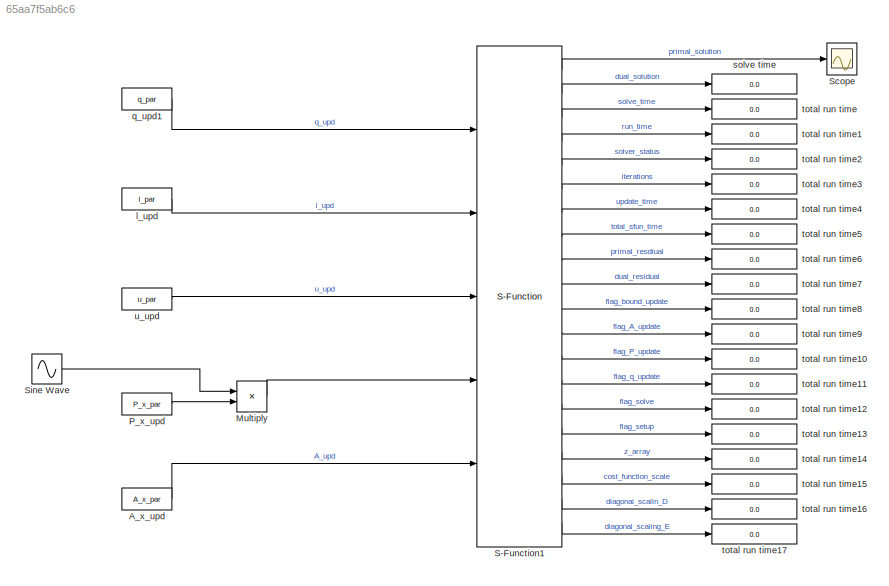
MODEL slx_65aa7f5ab6c6
KIND model
CONFIG AbsTol = auto
CONFIG EnableMultiTasking = off
CONFIG FixedStep = 0.1
CONFIG MaxStep = auto
CONFIG MinStep = auto
CONFIG RelTol = 1e-3
CONFIG SampleTimeConstraint = Unconstrained
CONFIG Solver = FixedStepAuto
CONFIG SolverName = FixedStepAuto
CONFIG StartTime = 0.0
CONFIG StopTime = 10.0
BLOCK [Constant] A_x_upd 
  Value = A_x_par
BLOCK [Product] Multiply
  InputSameDT = off
  OutDataTypeStr = Inherit: Inherit via internal rule
  Ports = [2, 1]
  RndMeth = Floor
  SaturateOnIntegerOverflow = off
BLOCK [Constant] P_x_upd 
  Value = P_x_par
BLOCK [S-Function] S-Function1
  EnableBusSupport = off
  FunctionName = osqp_sfun
  Parameters = q_par, m, n, P_x_par, P_i_par, P_p_par, A_x_par, A_i_par, A_p_par, l_par, u_par, trigger_print, trigger_Pupdate
  Ports = [5, 20]
  SFcnIsStateOwnerBlock = off
  SFunctionDeploymentMode = off
BLOCK [Scope] Scope
  Floating = off
  NumInputPorts = 1
  Ports = [1]
  ScopeSpecificationString = Simulink.scopes.TimeScopeBlockCfg('CurrentConfiguration', extmgr.ConfigurationSet(extmgr.Configuration('Core','General UI',true),extmgr.Configuration('Core','Source UI',true),extmgr.Configuration('Sources','WiredSimulink',true),extmgr.Configuration('Visuals','Time Domain',true),extmgr.Configuration('Tools','Plot Navigation',true),extmgr.Configuration('Tools','Measurements',true)),'Version','2018b'...<+1ch>
BLOCK [Sin] Sine Wave
  Amplitude = 0.1
  Bias = 2
  Ports = [0, 1]
  SampleTime = 0.1
BLOCK [Constant] l_upd
  Value = l_par
BLOCK [Constant] q_upd1
  Value = q_par
BLOCK [Display] solve time
  Decimation = 1
  Ports = [1]
BLOCK [Display] total run time
  Decimation = 1
  Ports = [1]
BLOCK [Display] total run time1
  Decimation = 1
  Ports = [1]
BLOCK [Display] total run time10
  Decimation = 1
  Ports = [1]
BLOCK [Display] total run time11
  Decimation = 1
  Ports = [1]
BLOCK [Display] total run time12
  Decimation = 1
  Ports = [1]
BLOCK [Display] total run time13
  Decimation = 1
  Ports = [1]
BLOCK [Display] total run time14
  Decimation = 1
  Ports = [1]
BLOCK [Display] total run time15
  Decimation = 1
  Ports = [1]
BLOCK [Display] total run time16
  Decimation = 1
  Ports = [1]
BLOCK [Display] total run time17
  Decimation = 1
  Ports = [1]
BLOCK [Display] total run time2
  Decimation = 1
  Ports = [1]
BLOCK [Display] total run time3
  Decimation = 1
  Ports = [1]
BLOCK [Display] total run time4
  Decimation = 1
  Ports = [1]
BLOCK [Display] total run time5
  Decimation = 1
  Ports = [1]
BLOCK [Display] total run time6
  Decimation = 1
  Ports = [1]
BLOCK [Display] total run time7
  Decimation = 1
  Ports = [1]
BLOCK [Display] total run time8
  Decimation = 1
  Ports = [1]
BLOCK [Display] total run time9
  Decimation = 1
  Ports = [1]
BLOCK [Constant] u_upd
  Value = u_par
LINE A_x_upd :1 -> S-Function1:5
LINE Multiply:1 -> S-Function1:4
LINE P_x_upd :1 -> Multiply:2
LINE S-Function1:1 -> Scope:1
LINE S-Function1:10 -> total run time7:1
LINE S-Function1:11 -> total run time8:1
LINE S-Function1:12 -> total run time9:1
LINE S-Function1:13 -> total run time10:1
LINE S-Function1:14 -> total run time11:1
LINE S-Function1:15 -> total run time12:1
LINE S-Function1:16 -> total run time13:1
LINE S-Function1:17 -> total run time14:1
LINE S-Function1:18 -> total run time15:1
LINE S-Function1:19 -> total run time16:1
LINE S-Function1:2 -> solve time:1
LINE S-Function1:20 -> total run time17:1
LINE S-Function1:3 -> total run time:1
LINE S-Function1:4 -> total run time1:1
LINE S-Function1:5 -> total run time2:1
LINE S-Function1:6 -> total run time3:1
LINE S-Function1:7 -> total run time4:1
LINE S-Function1:8 -> total run time5:1
LINE S-Function1:9 -> total run time6:1
LINE Sine Wave:1 -> Multiply:1
LINE l_upd:1 -> S-Function1:2
LINE q_upd1:1 -> S-Function1:1
LINE u_upd:1 -> S-Function1:3
